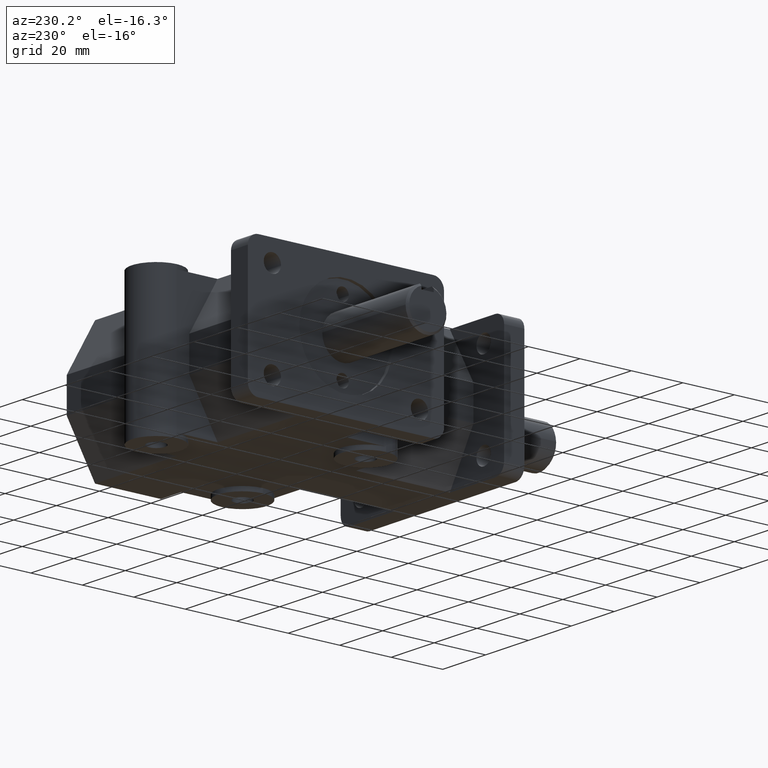
[diagram: clean part render]
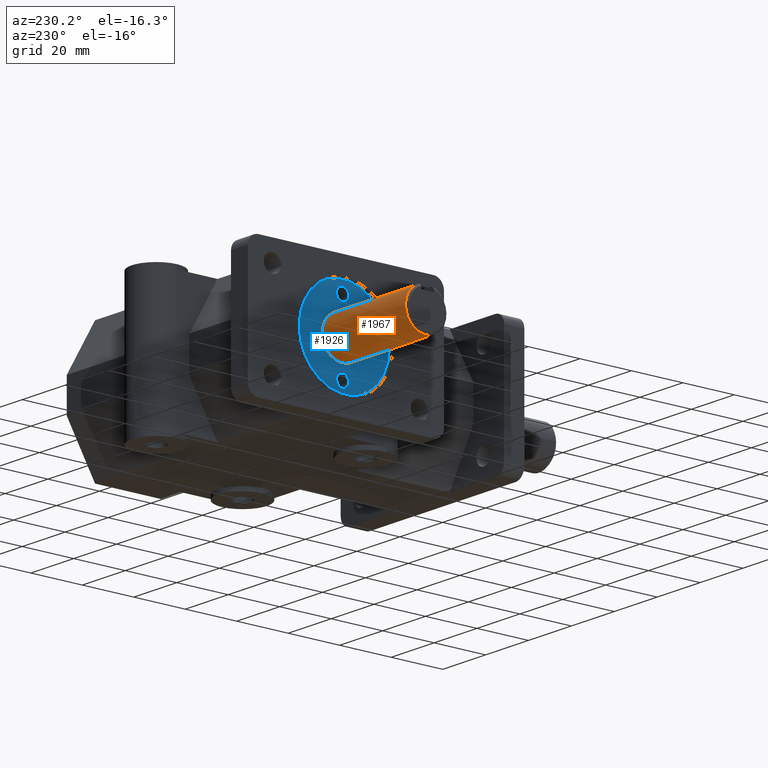
[diagram: same view with the hole feature highlighted: cylindrical wall and planar end face, labeled with their STEP entity ids]
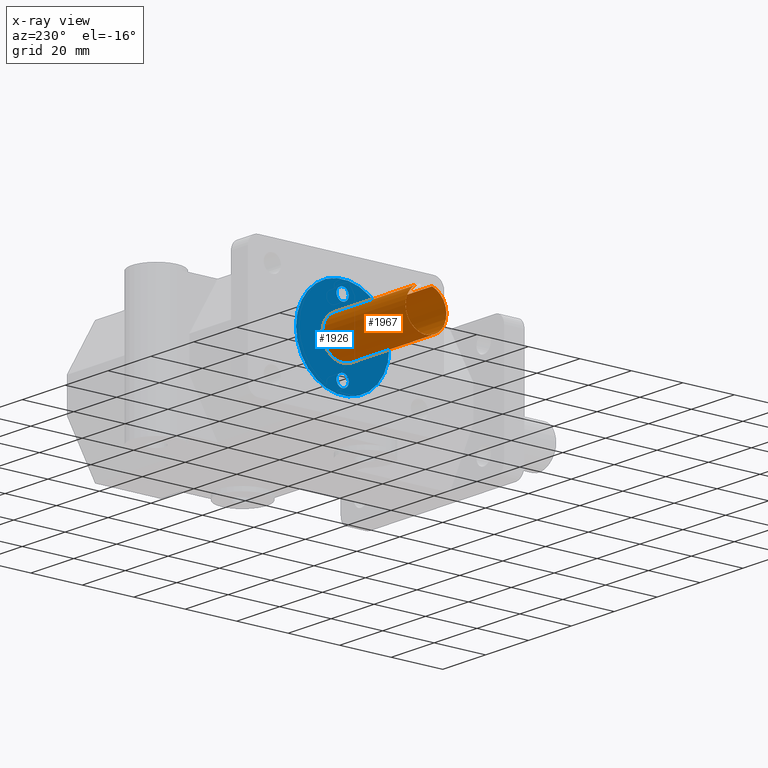
[diagram: x-ray of the same camera — body ghosted, the hole faces saturated]
A machine part, auxiliary view. The highlighted faces form one hole feature of diameter 15.875 mm: the cylindrical wall (entity #1967, orange) and its adjacent planar end face (entity #1926, blue) — they share a circular edge in the B-rep.
The next image is the same camera in x-ray (body ghosted, the hole faces saturated) — the bore reads through the body.
Wall:
#185=FACE_OUTER_BOUND('',#314,.T.);
#314=EDGE_LOOP('',(#1609,#1610,#1611,#1612,#1613,#1614,#1615,#1616));
#506=LINE('',#3213,#697);
#507=LINE('',#3216,#698);
#508=LINE('',#3217,#699);
#697=VECTOR('',#2594,1.);
#698=VECTOR('',#2597,1.);
#699=VECTOR('',#2598,0.3125);
#784=CIRCLE('',#2069,0.3125);
#826=CIRCLE('',#2151,0.3125);
#827=CIRCLE('',#2152,0.3125);
#829=CIRCLE('',#2155,0.3125);
#869=VERTEX_POINT('',#2875);
#991=VERTEX_POINT('',#3198);
#992=VERTEX_POINT('',#3202);
#993=VERTEX_POINT('',#3204);
#995=VERTEX_POINT('',#3212);
#996=VERTEX_POINT('',#3214);
#1063=EDGE_CURVE('',#869,#869,#784,.T.);
#1221=EDGE_CURVE('',#991,#992,#826,.T.);
#1222=EDGE_CURVE('',#992,#993,#827,.T.);
#1225=EDGE_CURVE('',#991,#995,#506,.T.);
#1226=EDGE_CURVE('',#995,#996,#829,.T.);
#1227=EDGE_CURVE('',#996,#993,#507,.T.);
#1228=EDGE_CURVE('',#992,#869,#508,.T.);
#1609=ORIENTED_EDGE('',*,*,#1221,.F.);
#1610=ORIENTED_EDGE('',*,*,#1225,.T.);
#1611=ORIENTED_EDGE('',*,*,#1226,.T.);
#1612=ORIENTED_EDGE('',*,*,#1227,.T.);
#1613=ORIENTED_EDGE('',*,*,#1222,.F.);
#1614=ORIENTED_EDGE('',*,*,#1228,.T.);
#1615=ORIENTED_EDGE('',*,*,#1063,.F.);
#1616=ORIENTED_EDGE('',*,*,#1228,.F.);
#1895=CYLINDRICAL_SURFACE('',#2154,0.3125);
#1967=ADVANCED_FACE('',(#185),#1895,.T.);
#2069=AXIS2_PLACEMENT_3D('',#2876,#2309,#2310);
#2151=AXIS2_PLACEMENT_3D('',#3203,#2586,#2587);
#2152=AXIS2_PLACEMENT_3D('',#3205,#2588,#2589);
#2154=AXIS2_PLACEMENT_3D('',#3211,#2592,#2593);
#2155=AXIS2_PLACEMENT_3D('',#3215,#2595,#2596);
#2309=DIRECTION('center_axis',(1.,0.,0.));
#2310=DIRECTION('ref_axis',(0.,-1.,0.));
#2586=DIRECTION('center_axis',(-1.,-6.12303176911189E-17,0.));
#2587=DIRECTION('ref_axis',(6.12303176911189E-17,-1.,0.));
#2588=DIRECTION('center_axis',(-1.,-6.12303176911189E-17,0.));
#2589=DIRECTION('ref_axis',(6.12303176911189E-17,-1.,0.));
#2592=DIRECTION('center_axis',(-1.,-6.12303176911189E-17,0.));
#2593=DIRECTION('ref_axis',(6.12303176911189E-17,-1.,0.));
#2594=DIRECTION('',(1.,6.12303176911189E-17,0.));
#2595=DIRECTION('center_axis',(1.,6.12303176911189E-17,0.));
#2596=DIRECTION('ref_axis',(6.12303176911189E-17,-1.,0.));
#2597=DIRECTION('',(-1.,-6.12303176911189E-17,0.));
#2598=DIRECTION('',(1.,6.12303176911189E-17,0.));
#2875=CARTESIAN_POINT('',(-2.065,3.5625,-3.82702124733548E-17));
#2876=CARTESIAN_POINT('Origin',(-2.065,3.25,0.));
#3198=CARTESIAN_POINT('',(-3.595,3.34375,0.298106000442796));
#3202=CARTESIAN_POINT('',(-3.595,3.5625,-3.82702124733548E-17));
#3203=CARTESIAN_POINT('Origin',(-3.595,3.25,0.));
#3204=CARTESIAN_POINT('',(-3.595,3.15625,0.298106000442796));
#3205=CARTESIAN_POINT('Origin',(-3.595,3.25,0.));
#3211=CARTESIAN_POINT('Origin',(-2.125,3.25,0.));
#3212=CARTESIAN_POINT('',(-2.625,3.34375,0.298106000442796));
#3213=CARTESIAN_POINT('',(-2.125,3.34375,0.298106000442796));
#3214=CARTESIAN_POINT('',(-2.625,3.15625,0.298106000442796));
#3215=CARTESIAN_POINT('Origin',(-2.625,3.25,0.));
#3216=CARTESIAN_POINT('',(-2.125,3.15625,0.298106000442796));
#3217=CARTESIAN_POINT('',(-2.125,3.5625,-3.82702124733548E-17));
End face:
#22=FACE_BOUND('',#255,.T.);
#23=FACE_BOUND('',#256,.T.);
#24=FACE_BOUND('',#257,.T.);
#63=PLANE('',#2068);
#144=FACE_OUTER_BOUND('',#254,.T.);
#254=EDGE_LOOP('',(#1358));
#255=EDGE_LOOP('',(#1359));
#256=EDGE_LOOP('',(#1360));
#257=EDGE_LOOP('',(#1361));
#766=CIRCLE('',#2036,0.0935);
#768=CIRCLE('',#2040,0.0935);
#779=CIRCLE('',#2061,0.714);
#784=CIRCLE('',#2069,0.3125);
#851=VERTEX_POINT('',#2815);
#853=VERTEX_POINT('',#2822);
#864=VERTEX_POINT('',#2859);
#869=VERTEX_POINT('',#2875);
#1036=EDGE_CURVE('',#851,#851,#766,.T.);
#1039=EDGE_CURVE('',#853,#853,#768,.T.);
#1056=EDGE_CURVE('',#864,#864,#779,.T.);
#1063=EDGE_CURVE('',#869,#869,#784,.T.);
#1358=ORIENTED_EDGE('',*,*,#1056,.T.);
#1359=ORIENTED_EDGE('',*,*,#1063,.T.);
#1360=ORIENTED_EDGE('',*,*,#1036,.T.);
#1361=ORIENTED_EDGE('',*,*,#1039,.T.);
#1926=ADVANCED_FACE('',(#144,#22,#23,#24),#63,.F.);
#2036=AXIS2_PLACEMENT_3D('',#2816,#2234,#2235);
#2040=AXIS2_PLACEMENT_3D('',#2823,#2243,#2244);
#2061=AXIS2_PLACEMENT_3D('',#2861,#2291,#2292);
#2068=AXIS2_PLACEMENT_3D('',#2874,#2307,#2308);
#2069=AXIS2_PLACEMENT_3D('',#2876,#2309,#2310);
#2234=DIRECTION('center_axis',(1.,0.,0.));
#2235=DIRECTION('ref_axis',(0.,1.,0.));
#2243=DIRECTION('center_axis',(1.,0.,0.));
#2244=DIRECTION('ref_axis',(0.,1.,0.));
#2291=DIRECTION('center_axis',(-1.,0.,0.));
#2292=DIRECTION('ref_axis',(0.,1.,0.));
#2307=DIRECTION('center_axis',(1.,0.,0.));
#2308=DIRECTION('ref_axis',(0.,-1.,0.));
#2309=DIRECTION('center_axis',(1.,0.,0.));
#2310=DIRECTION('ref_axis',(0.,-1.,0.));
#2815=CARTESIAN_POINT('',(-2.065,3.1565,-0.53));
#2816=CARTESIAN_POINT('Origin',(-2.065,3.25,-0.53));
#2822=CARTESIAN_POINT('',(-2.065,3.1565,0.53));
#2823=CARTESIAN_POINT('Origin',(-2.065,3.25,0.53));
#2859=CARTESIAN_POINT('',(-2.065,2.536,-8.7439781459121E-17));
#2861=CARTESIAN_POINT('Origin',(-2.065,3.25,0.));
#2874=CARTESIAN_POINT('Origin',(-2.065,3.30409090909091,-8.20154589760046E-18));
#2875=CARTESIAN_POINT('',(-2.065,3.5625,-3.82702124733548E-17));
#2876=CARTESIAN_POINT('Origin',(-2.065,3.25,0.));